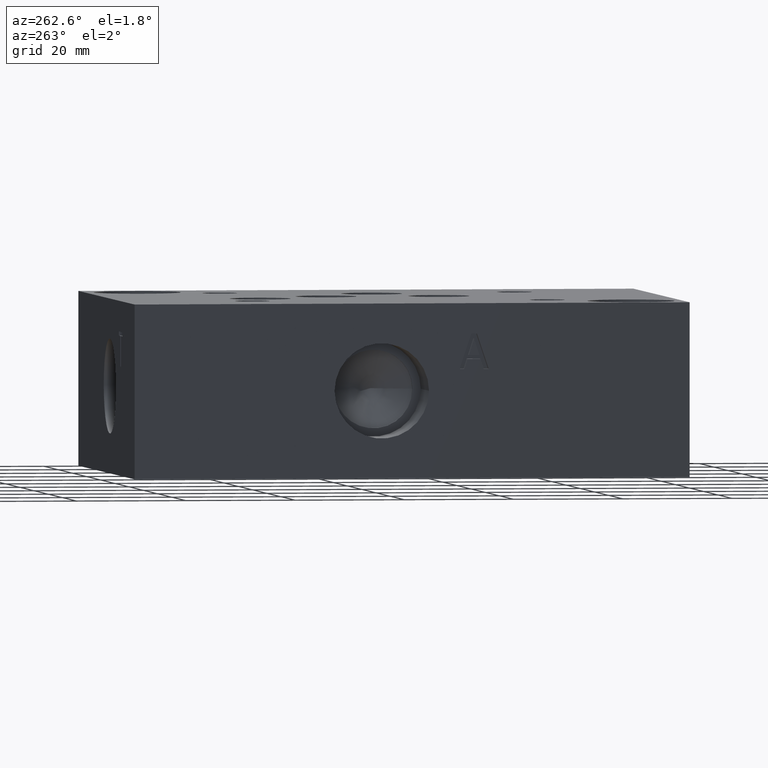
[diagram: clean part render]
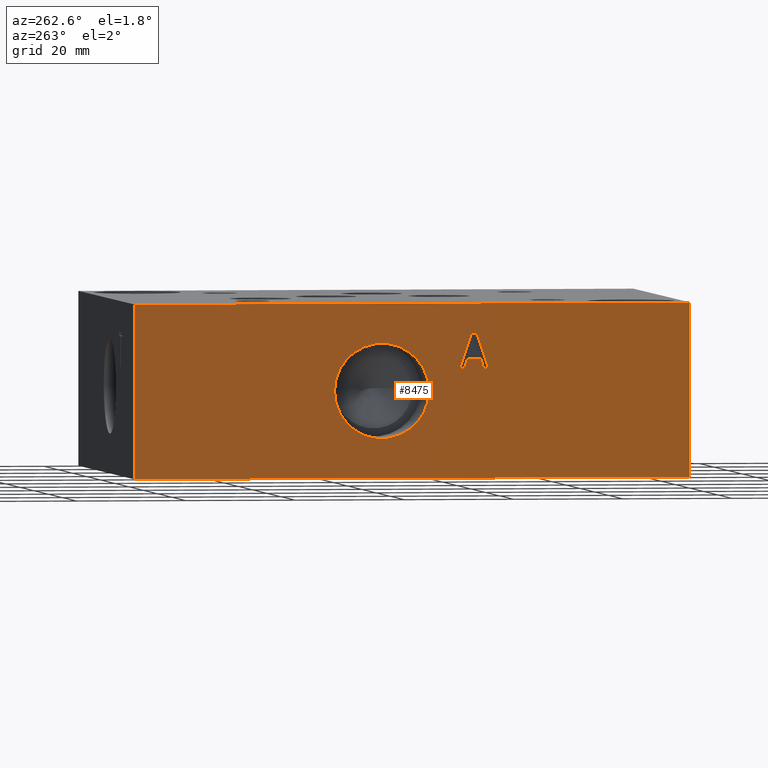
[diagram: same view with one face highlighted and labeled with its STEP entity id]
A machine part, auxiliary view. The second image highlights one B-rep face of the part: STEP entity #8475.
In plain terms, the highlighted planar face has unit normal (-1, 0, 0).
Its self-contained STEP definition (entity closure, byte-faithful):
#54=CIRCLE('',#8811,8.6487);
#55=CIRCLE('',#8812,8.6487);
#166=FACE_BOUND('',#1280,.T.);
#167=FACE_BOUND('',#1281,.T.);
#431=PLANE('',#8810);
#814=FACE_OUTER_BOUND('',#1279,.T.);
#1279=EDGE_LOOP('',(#7207,#7208,#7209,#7210));
#1280=EDGE_LOOP('',(#7211,#7212));
#1281=EDGE_LOOP('',(#7213,#7214,#7215,#7216,#7217,#7218,#7219,#7220));
#1661=LINE('',#12821,#2490);
#2111=LINE('',#14051,#2940);
#2115=LINE('',#14059,#2944);
#2118=LINE('',#14065,#2947);
#2121=LINE('',#14071,#2950);
#2124=LINE('',#14077,#2953);
#2127=LINE('',#14083,#2956);
#2130=LINE('',#14089,#2959);
#2133=LINE('',#14094,#2962);
#2135=LINE('',#14099,#2964);
#2136=LINE('',#14101,#2965);
#2137=LINE('',#14102,#2966);
#2490=VECTOR('',#9366,10.);
#2940=VECTOR('',#10148,10.);
#2944=VECTOR('',#10154,10.);
#2947=VECTOR('',#10159,10.);
#2950=VECTOR('',#10164,10.);
#2953=VECTOR('',#10169,10.);
#2956=VECTOR('',#10174,10.);
#2959=VECTOR('',#10179,10.);
#2962=VECTOR('',#10184,10.);
#2964=VECTOR('',#10190,10.);
#2965=VECTOR('',#10191,10.);
#2966=VECTOR('',#10192,10.);
#3619=VERTEX_POINT('',#12814);
#3622=VERTEX_POINT('',#12819);
#3955=VERTEX_POINT('',#14049);
#3956=VERTEX_POINT('',#14050);
#3959=VERTEX_POINT('',#14058);
#3961=VERTEX_POINT('',#14064);
#3963=VERTEX_POINT('',#14070);
#3965=VERTEX_POINT('',#14076);
#3967=VERTEX_POINT('',#14082);
#3969=VERTEX_POINT('',#14088);
#3971=VERTEX_POINT('',#14098);
#3972=VERTEX_POINT('',#14100);
#3973=VERTEX_POINT('',#14103);
#3974=VERTEX_POINT('',#14104);
#4577=EDGE_CURVE('',#3619,#3622,#1661,.T.);
#5069=EDGE_CURVE('',#3955,#3956,#2111,.T.);
#5073=EDGE_CURVE('',#3959,#3955,#2115,.T.);
#5076=EDGE_CURVE('',#3961,#3959,#2118,.T.);
#5079=EDGE_CURVE('',#3963,#3961,#2121,.T.);
#5082=EDGE_CURVE('',#3965,#3963,#2124,.T.);
#5085=EDGE_CURVE('',#3967,#3965,#2127,.T.);
#5088=EDGE_CURVE('',#3969,#3967,#2130,.T.);
#5091=EDGE_CURVE('',#3956,#3969,#2133,.T.);
#5093=EDGE_CURVE('',#3971,#3619,#2135,.T.);
#5094=EDGE_CURVE('',#3972,#3622,#2136,.T.);
#5095=EDGE_CURVE('',#3971,#3972,#2137,.T.);
#5096=EDGE_CURVE('',#3973,#3974,#54,.T.);
#5097=EDGE_CURVE('',#3974,#3973,#55,.T.);
#7207=ORIENTED_EDGE('',*,*,#5093,.T.);
#7208=ORIENTED_EDGE('',*,*,#4577,.T.);
#7209=ORIENTED_EDGE('',*,*,#5094,.F.);
#7210=ORIENTED_EDGE('',*,*,#5095,.F.);
#7211=ORIENTED_EDGE('',*,*,#5096,.T.);
#7212=ORIENTED_EDGE('',*,*,#5097,.T.);
#7213=ORIENTED_EDGE('',*,*,#5069,.T.);
#7214=ORIENTED_EDGE('',*,*,#5091,.T.);
#7215=ORIENTED_EDGE('',*,*,#5088,.T.);
#7216=ORIENTED_EDGE('',*,*,#5085,.T.);
#7217=ORIENTED_EDGE('',*,*,#5082,.T.);
#7218=ORIENTED_EDGE('',*,*,#5079,.T.);
#7219=ORIENTED_EDGE('',*,*,#5076,.T.);
#7220=ORIENTED_EDGE('',*,*,#5073,.T.);
#8475=ADVANCED_FACE('',(#814,#166,#167),#431,.T.);
#8810=AXIS2_PLACEMENT_3D('',#14097,#10188,#10189);
#8811=AXIS2_PLACEMENT_3D('',#14105,#10193,#10194);
#8812=AXIS2_PLACEMENT_3D('',#14106,#10195,#10196);
#9366=DIRECTION('',(0.,0.,1.));
#10148=DIRECTION('',(0.,1.,2.59940277575754E-15));
#10154=DIRECTION('',(0.,0.308774363938384,-0.951135317488761));
#10159=DIRECTION('',(0.,1.,3.66455083461359E-15));
#10164=DIRECTION('',(0.,0.308774363938378,0.951135317488763));
#10169=DIRECTION('',(0.,1.,2.49422462876157E-15));
#10174=DIRECTION('',(0.,-0.319451166674565,-0.947602739606772));
#10179=DIRECTION('',(0.,-1.,-8.5445715005099E-15));
#10184=DIRECTION('',(0.,-0.319451166674571,0.94760273960677));
#10188=DIRECTION('center_axis',(-1.,0.,0.));
#10189=DIRECTION('ref_axis',(0.,-1.,0.));
#10190=DIRECTION('',(0.,-1.,0.));
#10191=DIRECTION('',(0.,-1.,0.));
#10192=DIRECTION('',(0.,0.,1.));
#10193=DIRECTION('center_axis',(1.,0.,0.));
#10194=DIRECTION('ref_axis',(0.,1.,0.));
#10195=DIRECTION('center_axis',(1.,0.,0.));
#10196=DIRECTION('ref_axis',(0.,1.,0.));
#12814=CARTESIAN_POINT('',(0.,0.,0.));
#12819=CARTESIAN_POINT('',(0.,0.,31.75));
#12821=CARTESIAN_POINT('',(0.,0.,0.));
#14049=CARTESIAN_POINT('',(0.,41.25570301059,19.84375));
#14050=CARTESIAN_POINT('',(0.,42.1099169361727,19.84375));
#14051=CARTESIAN_POINT('',(0.,71.427851505295,19.8437500000001));
#14058=CARTESIAN_POINT('',(0.,40.6793659041728,21.6190741224459));
#14059=CARTESIAN_POINT('',(0.,46.758113398603,2.89436085835291));
#14064=CARTESIAN_POINT('',(0.,38.2556625370075,21.6190741224459));
#14065=CARTESIAN_POINT('',(0.,69.9278312685037,21.619074122446));
#14070=CARTESIAN_POINT('',(0.,37.6793254305903,19.84375));
#14071=CARTESIAN_POINT('',(0.,37.8125575817759,20.2541526085627));
#14076=CARTESIAN_POINT('',(0.,36.7890904358566,19.84375));
#14077=CARTESIAN_POINT('',(0.,69.1945452179283,19.8437500000001));
#14082=CARTESIAN_POINT('',(0.,38.9297711168348,26.1937499046326));
#14083=CARTESIAN_POINT('',(0.,38.1628980137317,23.9189388247548));
#14088=CARTESIAN_POINT('',(0.,39.9692362551944,26.1937499046326));
#14089=CARTESIAN_POINT('',(0.,70.7846181275971,26.1937499046328));
#14094=CARTESIAN_POINT('',(0.,48.1488486735038,1.93018806762849));
#14097=CARTESIAN_POINT('Origin',(0.,101.6,0.));
#14098=CARTESIAN_POINT('',(0.,101.6,0.));
#14099=CARTESIAN_POINT('',(0.,101.6,0.));
#14100=CARTESIAN_POINT('',(0.,101.6,31.75));
#14101=CARTESIAN_POINT('',(0.,101.6,31.75));
#14102=CARTESIAN_POINT('',(0.,101.6,0.));
#14103=CARTESIAN_POINT('',(0.,65.0113,15.875));
#14104=CARTESIAN_POINT('',(0.,47.7139,15.875));
#14105=CARTESIAN_POINT('Origin',(0.,56.3626,15.875));
#14106=CARTESIAN_POINT('Origin',(0.,56.3626,15.875));